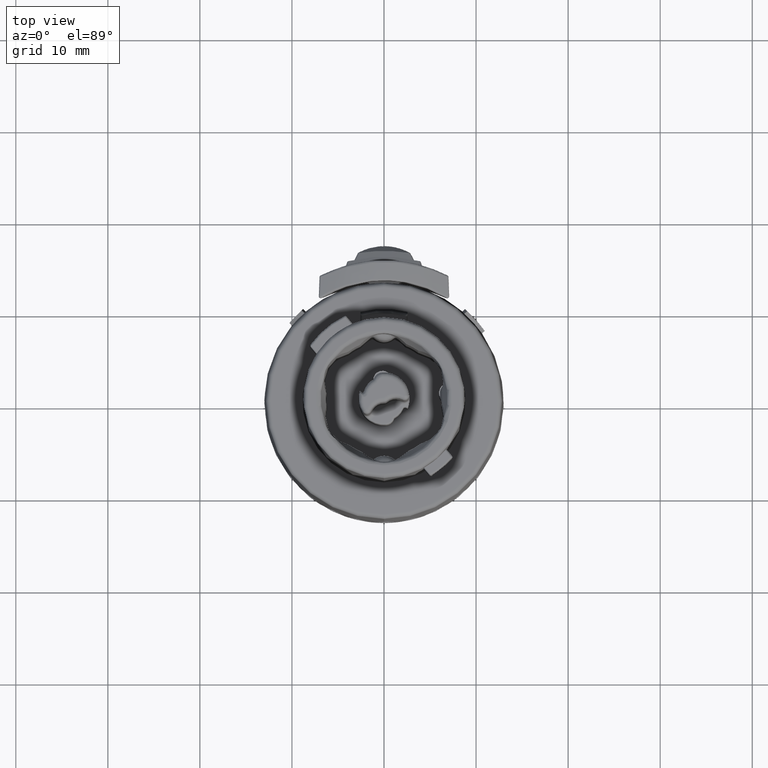
[diagram: clean part render]
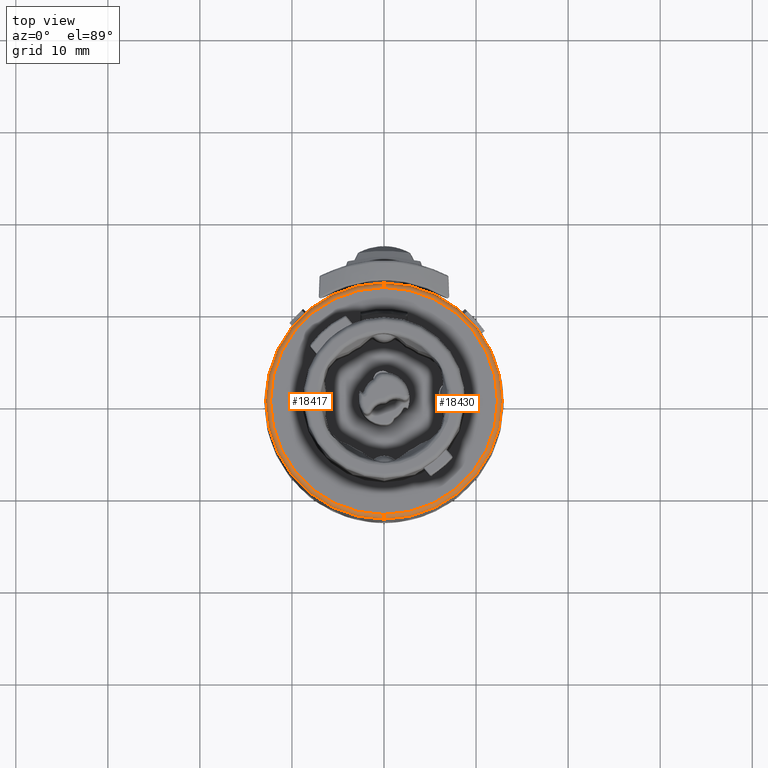
[diagram: same view with one multi-face feature highlighted, each face labeled with its STEP entity id]
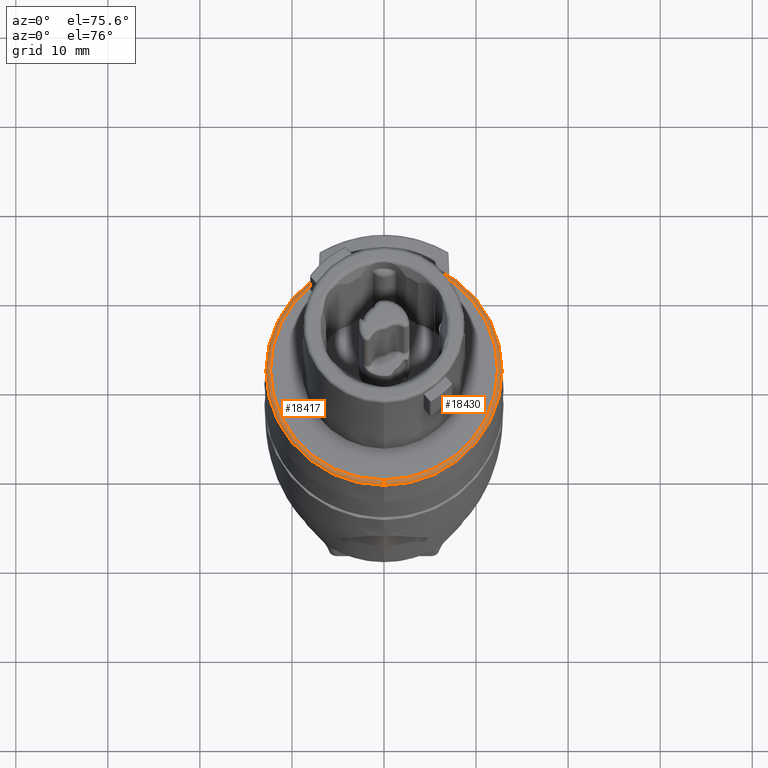
[diagram: same view with one multi-face feature highlighted, each face labeled with its STEP entity id]
A machine part, top view. The highlighted faces form ONE feature: a constant-radius fillet chain: 2 tangent blend faces with common blend radius 0.5 mm. The faces share edges in the B-rep.
A second angle (auxiliary view) of the same feature is appended — it is thin or edge-on in the first view.
Their STEP definitions:
[1] entity #18417 (Torus):
#340=CARTESIAN_POINT('',(0.E0,0.E0,1.E1));
#341=DIRECTION('',(0.E0,0.E0,1.E0));
#342=DIRECTION('',(0.E0,1.E0,0.E0));
#343=AXIS2_PLACEMENT_3D('',#340,#341,#342);
#3467=CARTESIAN_POINT('',(0.E0,1.232962011355E1,9.5E0));
#3468=DIRECTION('',(1.E0,0.E0,0.E0));
#3469=DIRECTION('',(0.E0,9.996573249756E-1,2.617694830787E-2));
#3470=AXIS2_PLACEMENT_3D('',#3467,#3468,#3469);
#3472=CARTESIAN_POINT('',(0.E0,-1.232962011355E1,9.5E0));
#3473=DIRECTION('',(-1.E0,0.E0,0.E0));
#3474=DIRECTION('',(0.E0,-9.996573249756E-1,2.617694830787E-2));
#3475=AXIS2_PLACEMENT_3D('',#3472,#3473,#3474);
#3477=CARTESIAN_POINT('',(0.E0,0.E0,9.513088474154E0));
#3478=DIRECTION('',(0.E0,0.E0,1.E0));
#3479=DIRECTION('',(0.E0,1.E0,0.E0));
#3480=AXIS2_PLACEMENT_3D('',#3477,#3478,#3479);
#11818=CARTESIAN_POINT('',(0.E0,1.282944877604E1,9.513088474154E0));
#11819=CARTESIAN_POINT('',(0.E0,1.232962011355E1,1.E1));
#11820=VERTEX_POINT('',#11818);
#11821=VERTEX_POINT('',#11819);
#11823=CARTESIAN_POINT('',(0.E0,-1.282944877604E1,9.513088474154E0));
#11825=VERTEX_POINT('',#11823);
#11826=CARTESIAN_POINT('',(0.E0,-1.232962011355E1,1.E1));
#11827=VERTEX_POINT('',#11826);
#18403=CARTESIAN_POINT('',(0.E0,0.E0,9.5E0));
#18404=DIRECTION('',(0.E0,0.E0,-1.E0));
#18405=DIRECTION('',(0.E0,-1.E0,0.E0));
#18406=AXIS2_PLACEMENT_3D('',#18403,#18404,#18405);
#18407=TOROIDAL_SURFACE('',#18406,1.232962011355E1,5.E-1);
#18409=ORIENTED_EDGE('',*,*,#18408,.T.);
#18410=ORIENTED_EDGE('',*,*,#12756,.T.);
#18412=ORIENTED_EDGE('',*,*,#18411,.F.);
#18414=ORIENTED_EDGE('',*,*,#18413,.F.);
#18415=EDGE_LOOP('',(#18409,#18410,#18412,#18414));
#18416=FACE_OUTER_BOUND('',#18415,.F.);
#18417=ADVANCED_FACE('',(#18416),#18407,.T.);
#344=CIRCLE('',#343,1.232962011355E1);
#3471=CIRCLE('',#3470,5.E-1);
#3476=CIRCLE('',#3475,5.E-1);
#3481=CIRCLE('',#3480,1.282944877604E1);
#12756=EDGE_CURVE('',#11821,#11827,#344,.T.);
#18408=EDGE_CURVE('',#11820,#11821,#3471,.T.);
#18411=EDGE_CURVE('',#11825,#11827,#3476,.T.);
#18413=EDGE_CURVE('',#11820,#11825,#3481,.T.);
[2] entity #18430 (Torus):
#345=CARTESIAN_POINT('',(0.E0,0.E0,1.E1));
#346=DIRECTION('',(0.E0,0.E0,-1.E0));
#347=DIRECTION('',(0.E0,1.E0,0.E0));
#348=AXIS2_PLACEMENT_3D('',#345,#346,#347);
#3467=CARTESIAN_POINT('',(0.E0,1.232962011355E1,9.5E0));
#3468=DIRECTION('',(1.E0,0.E0,0.E0));
#3469=DIRECTION('',(0.E0,9.996573249756E-1,2.617694830787E-2));
#3470=AXIS2_PLACEMENT_3D('',#3467,#3468,#3469);
#3472=CARTESIAN_POINT('',(0.E0,-1.232962011355E1,9.5E0));
#3473=DIRECTION('',(-1.E0,0.E0,0.E0));
#3474=DIRECTION('',(0.E0,-9.996573249756E-1,2.617694830787E-2));
#3475=AXIS2_PLACEMENT_3D('',#3472,#3473,#3474);
#3482=CARTESIAN_POINT('',(0.E0,0.E0,9.513088474154E0));
#3483=DIRECTION('',(0.E0,0.E0,-1.E0));
#3484=DIRECTION('',(0.E0,1.E0,0.E0));
#3485=AXIS2_PLACEMENT_3D('',#3482,#3483,#3484);
#11818=CARTESIAN_POINT('',(0.E0,1.282944877604E1,9.513088474154E0));
#11819=CARTESIAN_POINT('',(0.E0,1.232962011355E1,1.E1));
#11820=VERTEX_POINT('',#11818);
#11821=VERTEX_POINT('',#11819);
#11823=CARTESIAN_POINT('',(0.E0,-1.282944877604E1,9.513088474154E0));
#11825=VERTEX_POINT('',#11823);
#11826=CARTESIAN_POINT('',(0.E0,-1.232962011355E1,1.E1));
#11827=VERTEX_POINT('',#11826);
#18418=CARTESIAN_POINT('',(0.E0,0.E0,9.5E0));
#18419=DIRECTION('',(0.E0,0.E0,-1.E0));
#18420=DIRECTION('',(0.E0,-1.E0,0.E0));
#18421=AXIS2_PLACEMENT_3D('',#18418,#18419,#18420);
#18422=TOROIDAL_SURFACE('',#18421,1.232962011355E1,5.E-1);
#18423=ORIENTED_EDGE('',*,*,#18408,.F.);
#18425=ORIENTED_EDGE('',*,*,#18424,.T.);
#18426=ORIENTED_EDGE('',*,*,#18411,.T.);
#18427=ORIENTED_EDGE('',*,*,#12758,.F.);
#18428=EDGE_LOOP('',(#18423,#18425,#18426,#18427));
#18429=FACE_OUTER_BOUND('',#18428,.F.);
#18430=ADVANCED_FACE('',(#18429),#18422,.T.);
#349=CIRCLE('',#348,1.232962011355E1);
#3471=CIRCLE('',#3470,5.E-1);
#3476=CIRCLE('',#3475,5.E-1);
#3486=CIRCLE('',#3485,1.282944877604E1);
#12758=EDGE_CURVE('',#11821,#11827,#349,.T.);
#18408=EDGE_CURVE('',#11820,#11821,#3471,.T.);
#18411=EDGE_CURVE('',#11825,#11827,#3476,.T.);
#18424=EDGE_CURVE('',#11820,#11825,#3486,.T.);